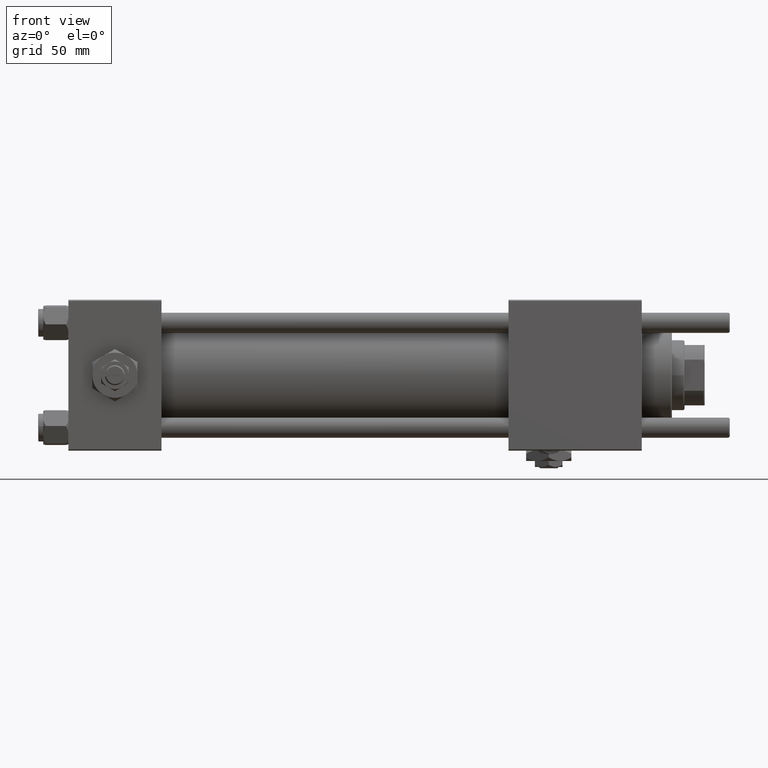
[diagram: clean part render]
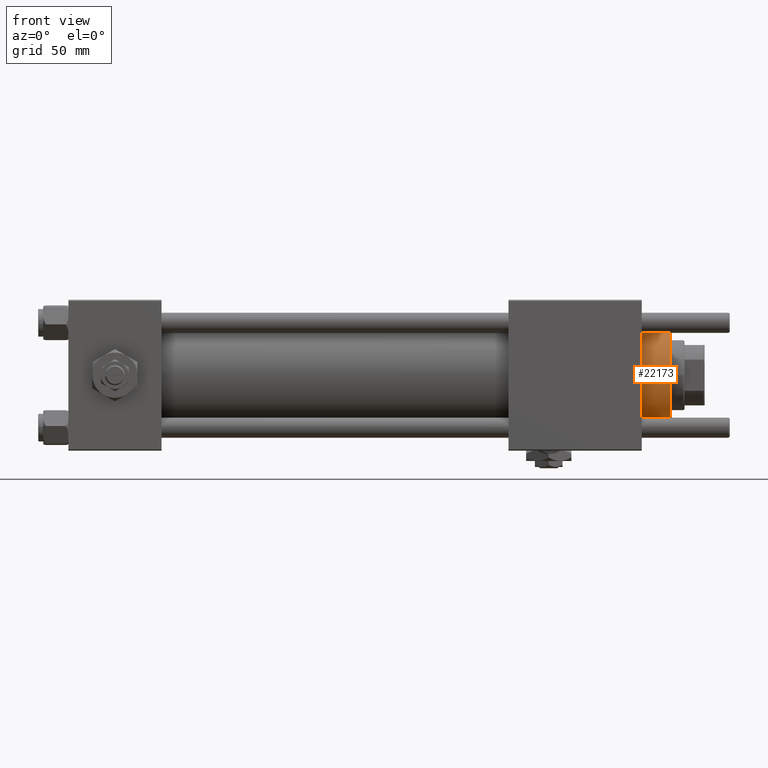
[diagram: same view with one face highlighted and labeled with its STEP entity id]
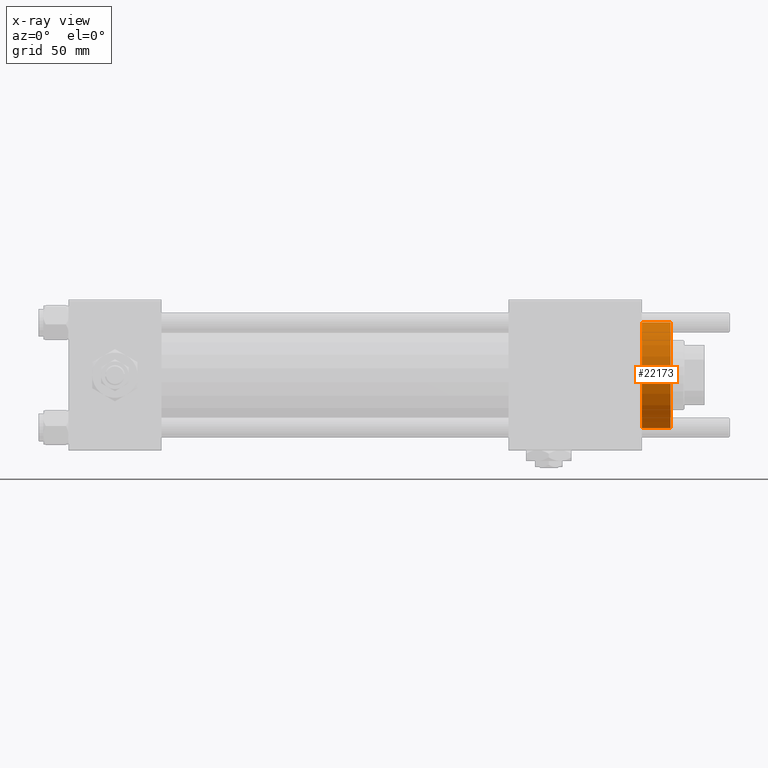
[diagram: x-ray of the same camera — body ghosted, the highlighted face saturated]
A machine part, front view. The second image highlights one B-rep face of the part: STEP entity #22173.
The next image is the same camera in x-ray: the body ghosted, the highlighted face saturated — about 0% of this face is hidden behind the body in this view.
In plain terms, the highlighted cylindrical surface (partial cylindrical patch) has radius 21 mm, axis along (-1, -0, 0).
Its self-contained STEP definition (entity closure, byte-faithful):
#895 = EDGE_CURVE ( 'NONE', #32073, #26112, #52382, .T. ) ;
#908 = ORIENTED_EDGE ( 'NONE', *, *, #41941, .F. ) ;
#1024 = ORIENTED_EDGE ( 'NONE', *, *, #13873, .T. ) ;
#2712 = CARTESIAN_POINT ( 'NONE',  ( -21.00000000000000000, 0.000000000000000000, 28.69999999999999929 ) ) ;
#3084 = EDGE_LOOP ( 'NONE', ( #908, #9844, #1024, #47372 ) ) ;
#3218 = DIRECTION ( 'NONE',  ( 1.000000000000000000, 0.000000000000000000, 0.000000000000000000 ) ) ;
#4724 = DIRECTION ( 'NONE',  ( 0.000000000000000000, 0.000000000000000000, -1.000000000000000000 ) ) ;
#8144 = CARTESIAN_POINT ( 'NONE',  ( 21.00000000000000000, 2.571758278209441661E-15, 40.70000000000000284 ) ) ;
#8413 = VERTEX_POINT ( 'NONE', #10746 ) ;
#8805 = FACE_OUTER_BOUND ( 'NONE', #3084, .T. ) ;
#9844 = ORIENTED_EDGE ( 'NONE', *, *, #21366, .T. ) ;
#10746 = CARTESIAN_POINT ( 'NONE',  ( -21.00000000000000000, 0.000000000000000000, 40.19999999999998863 ) ) ;
#11954 = VECTOR ( 'NONE', #47112, 1000.000000000000000 ) ;
#12176 = CARTESIAN_POINT ( 'NONE',  ( 0.000000000000000000, 0.000000000000000000, 28.69999999999999929 ) ) ;
#12831 = VECTOR ( 'NONE', #35021, 1000.000000000000000 ) ;
#13873 = EDGE_CURVE ( 'NONE', #8413, #32073, #43823, .T. ) ;
#16574 = DIRECTION ( 'NONE',  ( -0.000000000000000000, -0.000000000000000000, -1.000000000000000000 ) ) ;
#16870 = DIRECTION ( 'NONE',  ( -1.000000000000000000, 0.000000000000000000, 0.000000000000000000 ) ) ;
#16907 = VERTEX_POINT ( 'NONE', #48032 ) ;
#21366 = EDGE_CURVE ( 'NONE', #16907, #8413, #45440, .T. ) ;
#22173 = ADVANCED_FACE ( 'NONE', ( #8805 ), #26133, .T. ) ;
#24500 = AXIS2_PLACEMENT_3D ( 'NONE', #27020, #16574, #16870 ) ;
#26112 = VERTEX_POINT ( 'NONE', #49429 ) ;
#26133 = CYLINDRICAL_SURFACE ( 'NONE', #24500, 21.00000000000000000 ) ;
#27020 = CARTESIAN_POINT ( 'NONE',  ( 0.000000000000000000, 0.000000000000000000, 40.70000000000000284 ) ) ;
#27428 = CARTESIAN_POINT ( 'NONE',  ( 0.000000000000000000, 0.000000000000000000, 40.19999999999998863 ) ) ;
#32073 = VERTEX_POINT ( 'NONE', #2712 ) ;
#35021 = DIRECTION ( 'NONE',  ( -0.000000000000000000, -0.000000000000000000, -1.000000000000000000 ) ) ;
#35602 = LINE ( 'NONE', #8144, #12831 ) ;
#41941 = EDGE_CURVE ( 'NONE', #16907, #26112, #35602, .T. ) ;
#43823 = LINE ( 'NONE', #48286, #11954 ) ;
#45440 = CIRCLE ( 'NONE', #53063, 21.00000000000000000 ) ;
#45617 = DIRECTION ( 'NONE',  ( 1.000000000000000000, 0.000000000000000000, 0.000000000000000000 ) ) ;
#47112 = DIRECTION ( 'NONE',  ( -0.000000000000000000, -0.000000000000000000, -1.000000000000000000 ) ) ;
#47372 = ORIENTED_EDGE ( 'NONE', *, *, #895, .T. ) ;
#48032 = CARTESIAN_POINT ( 'NONE',  ( 21.00000000000000000, 2.571758278209441661E-15, 40.19999999999998863 ) ) ;
#48286 = CARTESIAN_POINT ( 'NONE',  ( -21.00000000000000000, 0.000000000000000000, 40.70000000000000284 ) ) ;
#49429 = CARTESIAN_POINT ( 'NONE',  ( 21.00000000000000000, 2.571758278209441661E-15, 28.69999999999999929 ) ) ;
#52382 = CIRCLE ( 'NONE', #54275, 21.00000000000000000 ) ;
#53063 = AXIS2_PLACEMENT_3D ( 'NONE', #27428, #4724, #45617 ) ;
#54275 = AXIS2_PLACEMENT_3D ( 'NONE', #12176, #57544, #3218 ) ;
#57544 = DIRECTION ( 'NONE',  ( 0.000000000000000000, 0.000000000000000000, 1.000000000000000000 ) ) ;